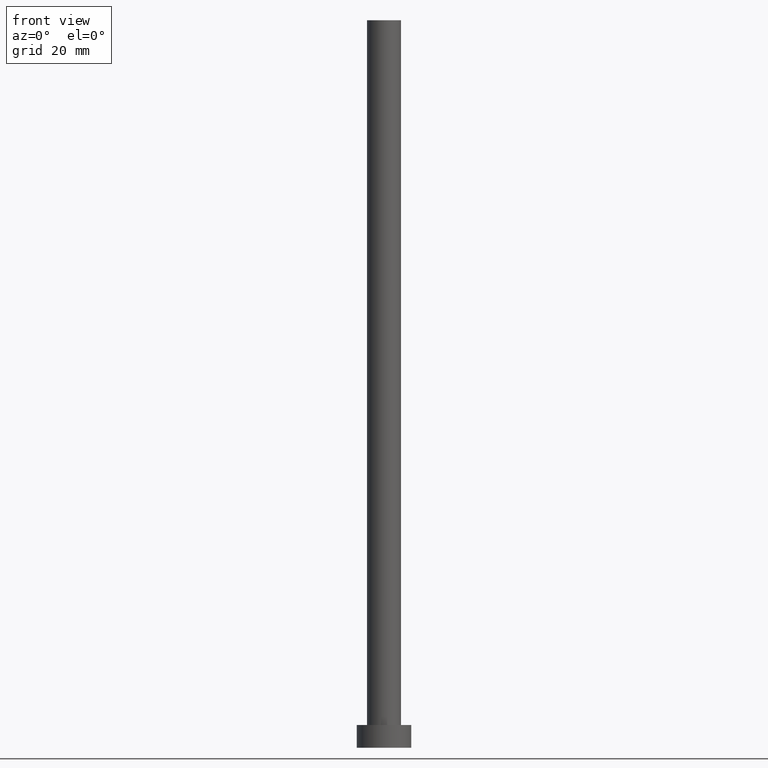
[diagram: clean part render]
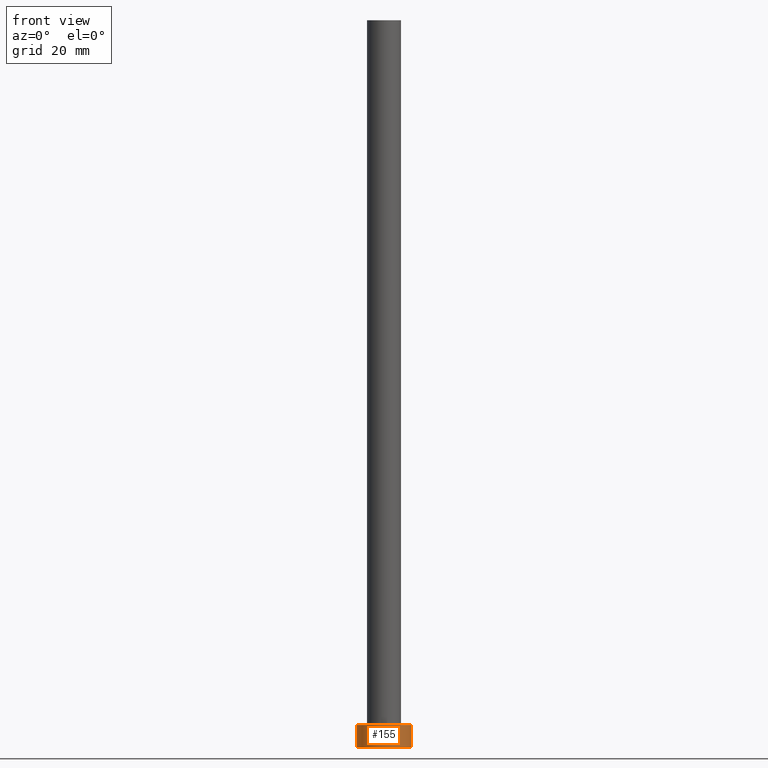
[diagram: same view with one face highlighted and labeled with its STEP entity id]
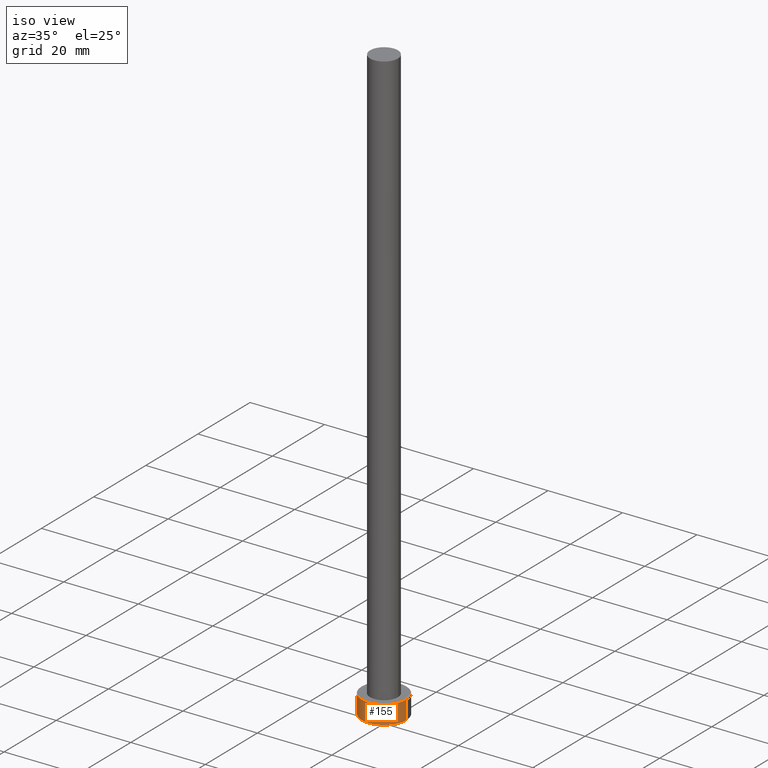
[diagram: same view with one face highlighted and labeled with its STEP entity id]
A machine part, front view. The second image highlights one B-rep face of the part: STEP entity #155.
A second angle (iso view) of the same face is appended — the face is thin or edge-on in the first view.
In plain terms, the highlighted cylindrical surface (edge-blend (fillet) strip) has radius 6 mm, axis along (-0, -0, -1).
Its self-contained STEP definition (entity closure, byte-faithful):
#3 = DIRECTION ( 'NONE',  ( -0.000000000000000000, -0.000000000000000000, -1.000000000000000000 ) ) ;
#4 = CARTESIAN_POINT ( 'NONE',  ( 0.000000000000000000, 0.000000000000000000, 0.000000000000000000 ) ) ;
#21 = AXIS2_PLACEMENT_3D ( 'NONE', #109, #3, #188 ) ;
#23 = CARTESIAN_POINT ( 'NONE',  ( 6.000000000000000888, 7.347880794884120722E-16, 5.000000000000000000 ) ) ;
#29 = VECTOR ( 'NONE', #80, 1000.000000000000000 ) ;
#30 = ORIENTED_EDGE ( 'NONE', *, *, #55, .F. ) ;
#41 = FACE_OUTER_BOUND ( 'NONE', #131, .T. ) ;
#55 = EDGE_CURVE ( 'NONE', #151, #73, #94, .T. ) ;
#58 = CARTESIAN_POINT ( 'NONE',  ( -6.000000000000000888, 0.000000000000000000, 0.000000000000000000 ) ) ;
#73 = VERTEX_POINT ( 'NONE', #242 ) ;
#74 = CIRCLE ( 'NONE', #221, 6.000000000000000888 ) ;
#77 = EDGE_CURVE ( 'NONE', #252, #91, #146, .T. ) ;
#80 = DIRECTION ( 'NONE',  ( -0.000000000000000000, -0.000000000000000000, -1.000000000000000000 ) ) ;
#85 = DIRECTION ( 'NONE',  ( 0.000000000000000000, 0.000000000000000000, 1.000000000000000000 ) ) ;
#91 = VERTEX_POINT ( 'NONE', #58 ) ;
#94 = LINE ( 'NONE', #253, #203 ) ;
#107 = DIRECTION ( 'NONE',  ( 1.000000000000000000, 0.000000000000000000, 0.000000000000000000 ) ) ;
#109 = CARTESIAN_POINT ( 'NONE',  ( 0.000000000000000000, 0.000000000000000000, 5.000000000000000000 ) ) ;
#119 = AXIS2_PLACEMENT_3D ( 'NONE', #4, #121, #107 ) ;
#120 = CIRCLE ( 'NONE', #119, 6.000000000000000888 ) ;
#121 = DIRECTION ( 'NONE',  ( 0.000000000000000000, 0.000000000000000000, 1.000000000000000000 ) ) ;
#126 = CARTESIAN_POINT ( 'NONE',  ( 0.000000000000000000, 0.000000000000000000, 5.000000000000000000 ) ) ;
#127 = CYLINDRICAL_SURFACE ( 'NONE', #21, 6.000000000000000888 ) ;
#131 = EDGE_LOOP ( 'NONE', ( #30, #178, #192, #191 ) ) ;
#138 = EDGE_CURVE ( 'NONE', #91, #73, #120, .T. ) ;
#146 = LINE ( 'NONE', #189, #29 ) ;
#151 = VERTEX_POINT ( 'NONE', #23 ) ;
#155 = ADVANCED_FACE ( 'NONE', ( #41 ), #127, .T. ) ;
#157 = DIRECTION ( 'NONE',  ( -0.000000000000000000, -0.000000000000000000, -1.000000000000000000 ) ) ;
#162 = DIRECTION ( 'NONE',  ( 1.000000000000000000, 0.000000000000000000, 0.000000000000000000 ) ) ;
#164 = CARTESIAN_POINT ( 'NONE',  ( -6.000000000000000888, 0.000000000000000000, 5.000000000000000000 ) ) ;
#178 = ORIENTED_EDGE ( 'NONE', *, *, #193, .F. ) ;
#188 = DIRECTION ( 'NONE',  ( -1.000000000000000000, 0.000000000000000000, 0.000000000000000000 ) ) ;
#189 = CARTESIAN_POINT ( 'NONE',  ( -6.000000000000000888, 0.000000000000000000, 5.000000000000000000 ) ) ;
#191 = ORIENTED_EDGE ( 'NONE', *, *, #138, .T. ) ;
#192 = ORIENTED_EDGE ( 'NONE', *, *, #77, .T. ) ;
#193 = EDGE_CURVE ( 'NONE', #252, #151, #74, .T. ) ;
#203 = VECTOR ( 'NONE', #157, 1000.000000000000000 ) ;
#221 = AXIS2_PLACEMENT_3D ( 'NONE', #126, #85, #162 ) ;
#242 = CARTESIAN_POINT ( 'NONE',  ( 6.000000000000000888, 7.347880794884120722E-16, 0.000000000000000000 ) ) ;
#252 = VERTEX_POINT ( 'NONE', #164 ) ;
#253 = CARTESIAN_POINT ( 'NONE',  ( 6.000000000000000888, 7.347880794884120722E-16, 5.000000000000000000 ) ) ;